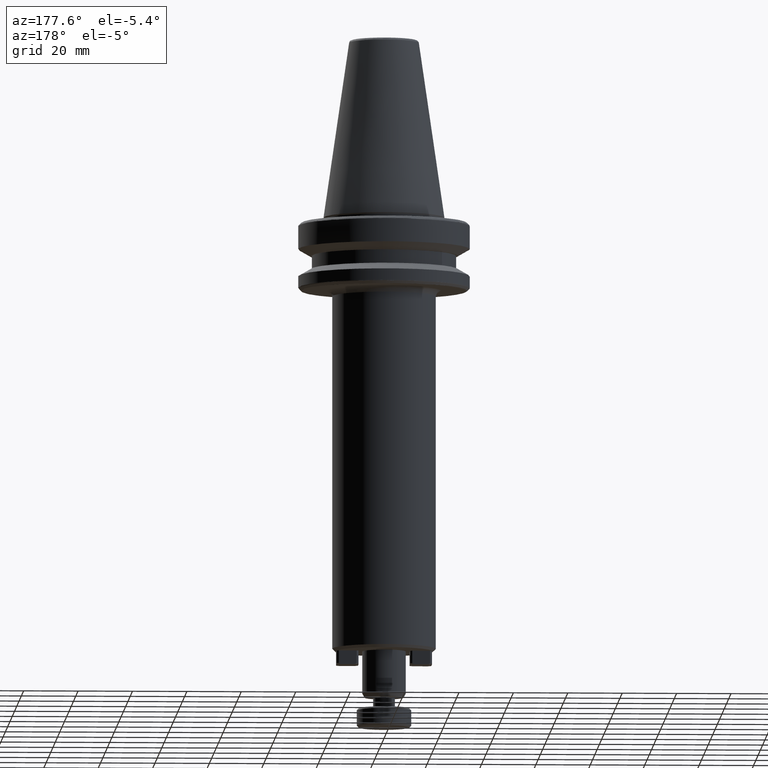
[diagram: clean part render]
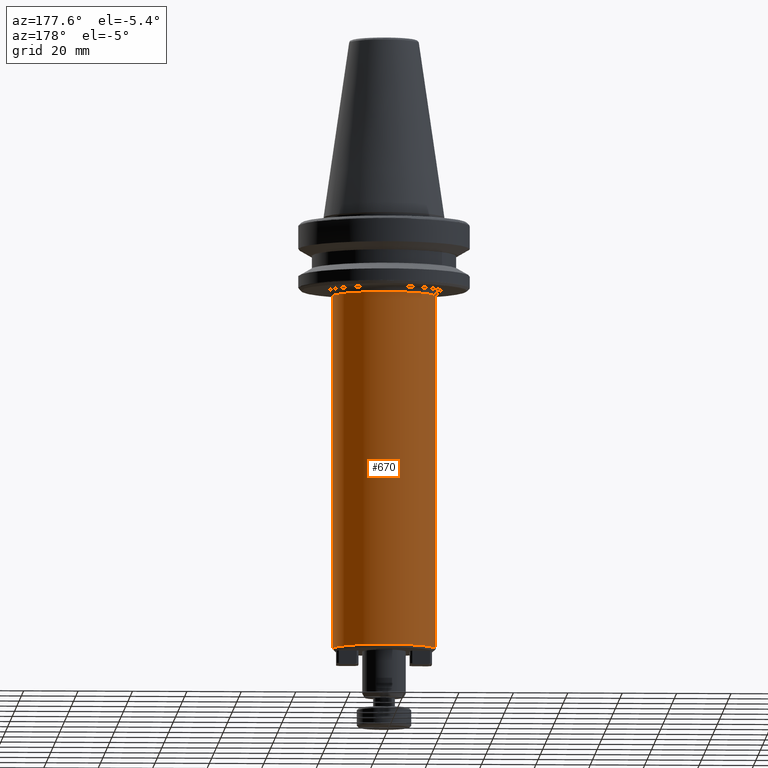
[diagram: same view with one face highlighted and labeled with its STEP entity id]
A machine part, auxiliary view. The second image highlights one B-rep face of the part: STEP entity #670.
In plain terms, the highlighted cylindrical surface (partial cylindrical patch) has radius 19 mm, axis along (0, 0, 1).
Its self-contained STEP definition (entity closure, byte-faithful):
#151 = VERTEX_POINT ( 'NONE', #2190 ) ;
#219 = VERTEX_POINT ( 'NONE', #1712 ) ;
#260 = CIRCLE ( 'NONE', #1056, 19.00000000000000400 ) ;
#374 = CARTESIAN_POINT ( 'NONE',  ( -19.00000000000000400, 2.326828918379971400E-015, 88.34764052968309000 ) ) ;
#481 = DIRECTION ( 'NONE',  ( 0.0000000000000000000, 0.0000000000000000000, 1.000000000000000000 ) ) ;
#670 = ADVANCED_FACE ( 'NONE', ( #2982 ), #2158, .T. ) ;
#739 = CARTESIAN_POINT ( 'NONE',  ( 0.0000000000000000000, 0.0000000000000000000, 88.34764052968309000 ) ) ;
#760 = DIRECTION ( 'NONE',  ( 0.0000000000000000000, 0.0000000000000000000, 1.000000000000000000 ) ) ;
#808 = EDGE_CURVE ( 'NONE', #219, #1669, #1732, .T. ) ;
#898 = ORIENTED_EDGE ( 'NONE', *, *, #1593, .T. ) ;
#906 = DIRECTION ( 'NONE',  ( 1.000000000000000000, 0.0000000000000000000, 0.0000000000000000000 ) ) ;
#991 = VECTOR ( 'NONE', #481, 1000.000000000000000 ) ;
#1056 = AXIS2_PLACEMENT_3D ( 'NONE', #1713, #1711, #1709 ) ;
#1159 = EDGE_LOOP ( 'NONE', ( #2467, #1348, #898, #2515 ) ) ;
#1191 = CARTESIAN_POINT ( 'NONE',  ( 19.00000000000000400, 0.0000000000000000000, -29.00000000000001100 ) ) ;
#1348 = ORIENTED_EDGE ( 'NONE', *, *, #808, .T. ) ;
#1385 = DIRECTION ( 'NONE',  ( 1.000000000000000000, 0.0000000000000000000, 0.0000000000000000000 ) ) ;
#1387 = DIRECTION ( 'NONE',  ( 0.0000000000000000000, 0.0000000000000000000, 1.000000000000000000 ) ) ;
#1399 = CARTESIAN_POINT ( 'NONE',  ( 0.0000000000000000000, 0.0000000000000000000, -159.0000000000000300 ) ) ;
#1513 = DIRECTION ( 'NONE',  ( 0.0000000000000000000, 0.0000000000000000000, 1.000000000000000000 ) ) ;
#1593 = EDGE_CURVE ( 'NONE', #1669, #3137, #260, .T. ) ;
#1635 = CARTESIAN_POINT ( 'NONE',  ( -19.00000000000000400, 2.326828918379971400E-015, -29.00000000000001100 ) ) ;
#1669 = VERTEX_POINT ( 'NONE', #1635 ) ;
#1709 = DIRECTION ( 'NONE',  ( 1.000000000000000000, 0.0000000000000000000, 0.0000000000000000000 ) ) ;
#1711 = DIRECTION ( 'NONE',  ( -0.0000000000000000000, -0.0000000000000000000, -1.000000000000000000 ) ) ;
#1712 = CARTESIAN_POINT ( 'NONE',  ( -19.00000000000001400, 2.326828918379972900E-015, -159.0000000000000300 ) ) ;
#1713 = CARTESIAN_POINT ( 'NONE',  ( 0.0000000000000000000, 0.0000000000000000000, -29.00000000000001100 ) ) ;
#1732 = LINE ( 'NONE', #374, #991 ) ;
#1792 = EDGE_CURVE ( 'NONE', #151, #219, #3533, .T. ) ;
#1800 = AXIS2_PLACEMENT_3D ( 'NONE', #739, #1513, #906 ) ;
#1953 = LINE ( 'NONE', #3580, #2601 ) ;
#2158 = CYLINDRICAL_SURFACE ( 'NONE', #1800, 19.00000000000000400 ) ;
#2190 = CARTESIAN_POINT ( 'NONE',  ( 19.00000000000001400, 0.0000000000000000000, -159.0000000000000300 ) ) ;
#2459 = EDGE_CURVE ( 'NONE', #151, #3137, #1953, .T. ) ;
#2467 = ORIENTED_EDGE ( 'NONE', *, *, #1792, .T. ) ;
#2515 = ORIENTED_EDGE ( 'NONE', *, *, #2459, .F. ) ;
#2601 = VECTOR ( 'NONE', #760, 1000.000000000000000 ) ;
#2982 = FACE_OUTER_BOUND ( 'NONE', #1159, .T. ) ;
#3137 = VERTEX_POINT ( 'NONE', #1191 ) ;
#3421 = AXIS2_PLACEMENT_3D ( 'NONE', #1399, #1387, #1385 ) ;
#3533 = CIRCLE ( 'NONE', #3421, 19.00000000000000400 ) ;
#3580 = CARTESIAN_POINT ( 'NONE',  ( 19.00000000000000400, 0.0000000000000000000, 88.34764052968309000 ) ) ;